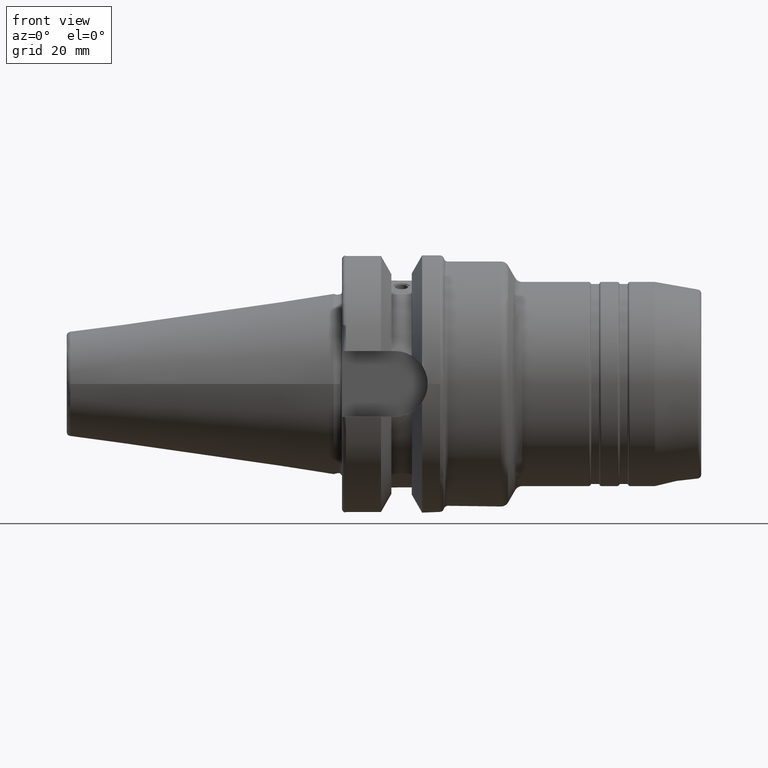
[diagram: clean part render]
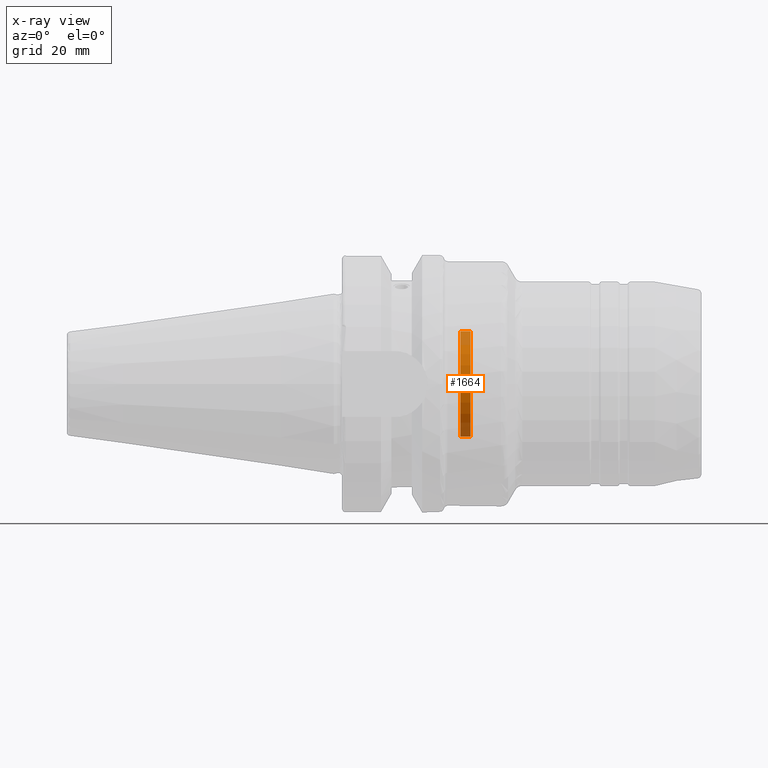
[diagram: x-ray — body ghosted, one internal face saturated and labeled with its STEP entity id]
A machine part, front view, then the same camera in x-ray: the body is ghosted and one INTERNAL B-rep face — a face not visible from any outside direction — is saturated and labeled: STEP entity #1664.
In plain terms, the highlighted cylindrical surface (bore or boss wall) has radius 12.9 mm, axis along (1, 0, 0).
Its self-contained STEP definition (entity closure, byte-faithful):
#163=FACE_OUTER_BOUND('',#256,.T.);
#256=EDGE_LOOP('',(#1250,#1251,#1252,#1253,#1254,#1255));
#342=LINE('',#2853,#412);
#412=VECTOR('',#2234,12.9);
#540=CIRCLE('',#1847,12.9);
#541=CIRCLE('',#1848,12.9);
#542=CIRCLE('',#1850,12.9);
#543=CIRCLE('',#1851,12.9);
#682=VERTEX_POINT('',#2847);
#683=VERTEX_POINT('',#2848);
#684=VERTEX_POINT('',#2852);
#685=VERTEX_POINT('',#2854);
#896=EDGE_CURVE('',#682,#683,#540,.T.);
#897=EDGE_CURVE('',#683,#682,#541,.T.);
#898=EDGE_CURVE('',#683,#684,#342,.T.);
#899=EDGE_CURVE('',#685,#684,#542,.T.);
#900=EDGE_CURVE('',#684,#685,#543,.T.);
#1250=ORIENTED_EDGE('',*,*,#896,.T.);
#1251=ORIENTED_EDGE('',*,*,#898,.T.);
#1252=ORIENTED_EDGE('',*,*,#899,.F.);
#1253=ORIENTED_EDGE('',*,*,#900,.F.);
#1254=ORIENTED_EDGE('',*,*,#898,.F.);
#1255=ORIENTED_EDGE('',*,*,#897,.T.);
#1609=CYLINDRICAL_SURFACE('',#1849,12.9);
#1664=ADVANCED_FACE('',(#163),#1609,.F.);
#1847=AXIS2_PLACEMENT_3D('',#2849,#2228,#2229);
#1848=AXIS2_PLACEMENT_3D('',#2850,#2230,#2231);
#1849=AXIS2_PLACEMENT_3D('',#2851,#2232,#2233);
#1850=AXIS2_PLACEMENT_3D('',#2855,#2235,#2236);
#1851=AXIS2_PLACEMENT_3D('',#2856,#2237,#2238);
#2228=DIRECTION('center_axis',(1.,0.,0.));
#2229=DIRECTION('ref_axis',(0.,0.,-1.));
#2230=DIRECTION('center_axis',(1.,0.,0.));
#2231=DIRECTION('ref_axis',(0.,0.,-1.));
#2232=DIRECTION('center_axis',(1.,0.,0.));
#2233=DIRECTION('ref_axis',(0.,0.,-1.));
#2234=DIRECTION('',(-1.,0.,0.));
#2235=DIRECTION('center_axis',(1.,0.,0.));
#2236=DIRECTION('ref_axis',(0.,0.,-1.));
#2237=DIRECTION('center_axis',(1.,0.,0.));
#2238=DIRECTION('ref_axis',(0.,0.,-1.));
#2847=CARTESIAN_POINT('',(33.5,0.,-12.9));
#2848=CARTESIAN_POINT('',(33.5,-1.57979437090008E-15,12.9));
#2849=CARTESIAN_POINT('Origin',(33.5,0.,0.));
#2850=CARTESIAN_POINT('Origin',(33.5,0.,0.));
#2851=CARTESIAN_POINT('Origin',(32.25,0.,0.));
#2852=CARTESIAN_POINT('',(31.,-1.57979437090008E-15,12.9));
#2853=CARTESIAN_POINT('',(32.25,-1.57979437090008E-15,12.9));
#2854=CARTESIAN_POINT('',(31.,0.,-12.9));
#2855=CARTESIAN_POINT('Origin',(31.,0.,0.));
#2856=CARTESIAN_POINT('Origin',(31.,0.,0.));